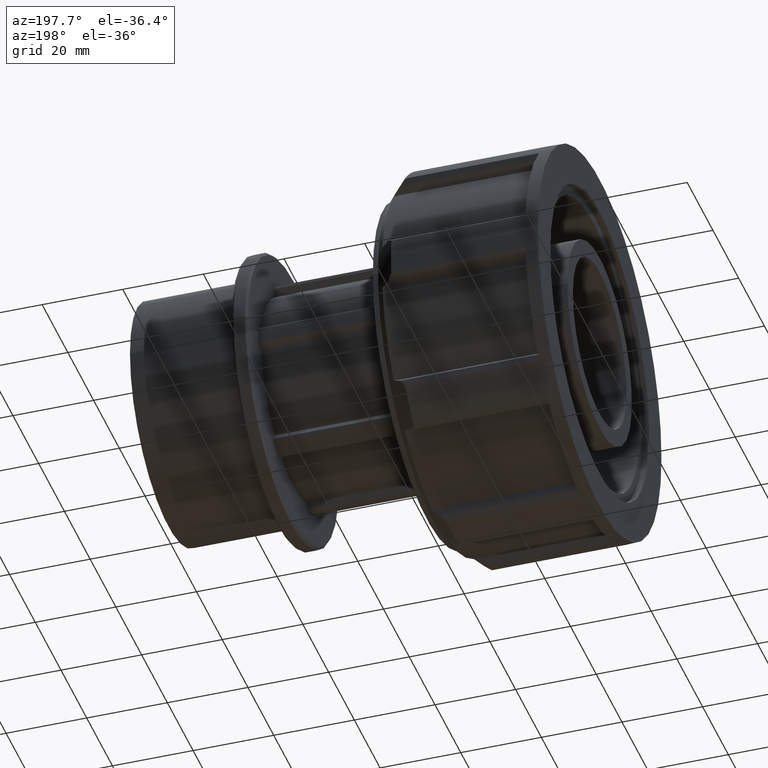
[diagram: clean part render]
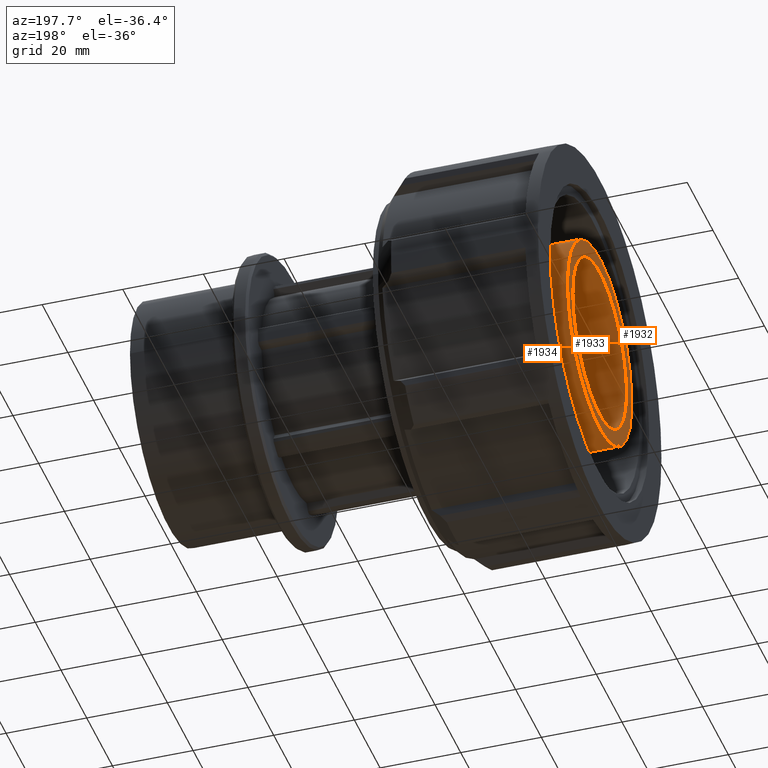
[diagram: same view with one multi-face feature highlighted, each face labeled with its STEP entity id]
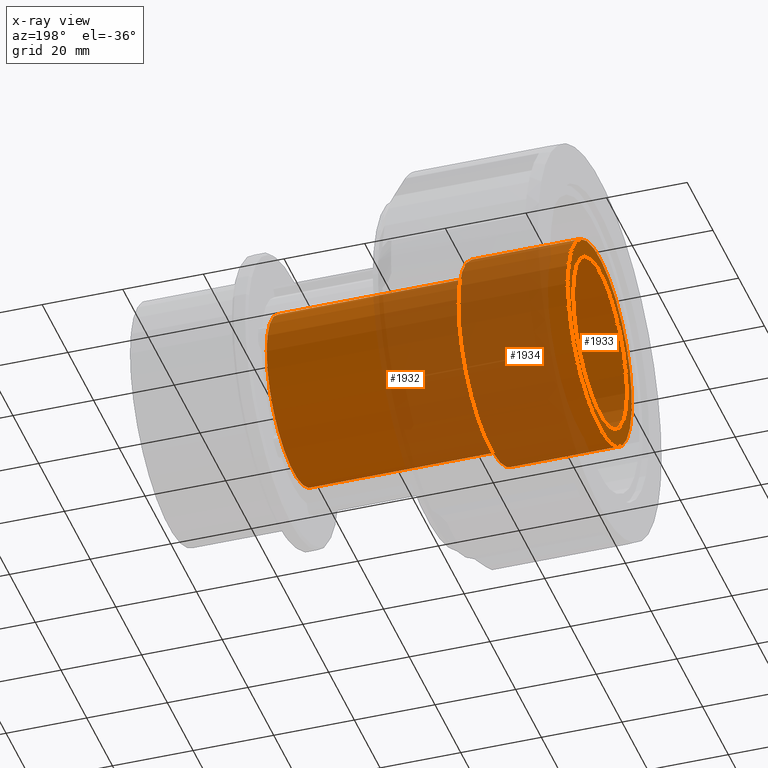
[diagram: x-ray of the same camera — body ghosted, the whole feature saturated]
A machine part, auxiliary view. The highlighted faces form ONE feature: a stepped (counterbored) hole: 2 coaxial cylindrical walls of radii 20.8649 -> 25 mm joined by 1 annular planar shoulder face(s). The faces share edges in the B-rep.
The next image is the same camera in x-ray: the body ghosted and the whole hole feature saturated, so the bore chain is visible through the body.
Their STEP definitions:
[1] entity #1934 (Cylinder):
#64=FACE_BOUND('',#402,.T.);
#144=CIRCLE('',#2113,25.);
#145=CIRCLE('',#2115,25.);
#177=CYLINDRICAL_SURFACE('',#2114,25.);
#280=FACE_OUTER_BOUND('',#401,.T.);
#401=EDGE_LOOP('',(#1741));
#402=EDGE_LOOP('',(#1742));
#932=VERTEX_POINT('',#3279);
#933=VERTEX_POINT('',#3282);
#1206=EDGE_CURVE('',#932,#932,#144,.T.);
#1207=EDGE_CURVE('',#933,#933,#145,.T.);
#1741=ORIENTED_EDGE('',*,*,#1207,.F.);
#1742=ORIENTED_EDGE('',*,*,#1206,.T.);
#1934=ADVANCED_FACE('',(#280,#64),#177,.T.);
#2113=AXIS2_PLACEMENT_3D('',#3280,#2631,#2632);
#2114=AXIS2_PLACEMENT_3D('',#3281,#2633,#2634);
#2115=AXIS2_PLACEMENT_3D('',#3283,#2635,#2636);
#2631=DIRECTION('center_axis',(1.,0.,0.));
#2632=DIRECTION('ref_axis',(0.,0.,-1.));
#2633=DIRECTION('center_axis',(1.,0.,0.));
#2634=DIRECTION('ref_axis',(0.,1.,0.));
#2635=DIRECTION('center_axis',(1.,0.,0.));
#2636=DIRECTION('ref_axis',(0.,0.,-1.));
#3279=CARTESIAN_POINT('',(0.,25.,0.));
#3280=CARTESIAN_POINT('Origin',(0.,0.,0.));
#3281=CARTESIAN_POINT('Origin',(13.5,0.,0.));
#3282=CARTESIAN_POINT('',(27.,25.,0.));
#3283=CARTESIAN_POINT('Origin',(27.,0.,0.));
[2] entity #1932 (Cylinder):
#62=FACE_BOUND('',#398,.T.);
#142=CIRCLE('',#2109,20.8649);
#143=CIRCLE('',#2111,20.8649);
#176=CYLINDRICAL_SURFACE('',#2110,20.8649);
#278=FACE_OUTER_BOUND('',#397,.T.);
#397=EDGE_LOOP('',(#1737));
#398=EDGE_LOOP('',(#1738));
#930=VERTEX_POINT('',#3273);
#931=VERTEX_POINT('',#3276);
#1204=EDGE_CURVE('',#930,#930,#142,.T.);
#1205=EDGE_CURVE('',#931,#931,#143,.T.);
#1737=ORIENTED_EDGE('',*,*,#1205,.F.);
#1738=ORIENTED_EDGE('',*,*,#1204,.T.);
#1932=ADVANCED_FACE('',(#278,#62),#176,.F.);
#2109=AXIS2_PLACEMENT_3D('',#3274,#2623,#2624);
#2110=AXIS2_PLACEMENT_3D('',#3275,#2625,#2626);
#2111=AXIS2_PLACEMENT_3D('',#3277,#2627,#2628);
#2623=DIRECTION('center_axis',(1.,0.,0.));
#2624=DIRECTION('ref_axis',(0.,0.,-1.));
#2625=DIRECTION('center_axis',(1.,0.,0.));
#2626=DIRECTION('ref_axis',(0.,1.,0.));
#2627=DIRECTION('center_axis',(1.,0.,0.));
#2628=DIRECTION('ref_axis',(0.,0.,-1.));
#3273=CARTESIAN_POINT('',(75.95,20.8649,0.));
#3274=CARTESIAN_POINT('Origin',(75.95,0.,0.));
#3275=CARTESIAN_POINT('Origin',(37.975,0.,0.));
#3276=CARTESIAN_POINT('',(0.,20.8649,0.));
#3277=CARTESIAN_POINT('Origin',(0.,0.,0.));
[3] entity #1933 (Plane):
#63=FACE_BOUND('',#400,.T.);
#143=CIRCLE('',#2111,20.8649);
#144=CIRCLE('',#2113,25.);
#279=FACE_OUTER_BOUND('',#399,.T.);
#399=EDGE_LOOP('',(#1739));
#400=EDGE_LOOP('',(#1740));
#931=VERTEX_POINT('',#3276);
#932=VERTEX_POINT('',#3279);
#1205=EDGE_CURVE('',#931,#931,#143,.T.);
#1206=EDGE_CURVE('',#932,#932,#144,.T.);
#1739=ORIENTED_EDGE('',*,*,#1206,.F.);
#1740=ORIENTED_EDGE('',*,*,#1205,.T.);
#1831=PLANE('',#2112);
#1933=ADVANCED_FACE('',(#279,#63),#1831,.T.);
#2111=AXIS2_PLACEMENT_3D('',#3277,#2627,#2628);
#2112=AXIS2_PLACEMENT_3D('',#3278,#2629,#2630);
#2113=AXIS2_PLACEMENT_3D('',#3280,#2631,#2632);
#2627=DIRECTION('center_axis',(1.,0.,0.));
#2628=DIRECTION('ref_axis',(0.,0.,-1.));
#2629=DIRECTION('center_axis',(-1.,0.,0.));
#2630=DIRECTION('ref_axis',(0.,0.,1.));
#2631=DIRECTION('center_axis',(1.,0.,0.));
#2632=DIRECTION('ref_axis',(0.,0.,-1.));
#3276=CARTESIAN_POINT('',(0.,20.8649,0.));
#3277=CARTESIAN_POINT('Origin',(0.,0.,0.));
#3278=CARTESIAN_POINT('Origin',(0.,25.,0.));
#3279=CARTESIAN_POINT('',(0.,25.,0.));
#3280=CARTESIAN_POINT('Origin',(0.,0.,0.));